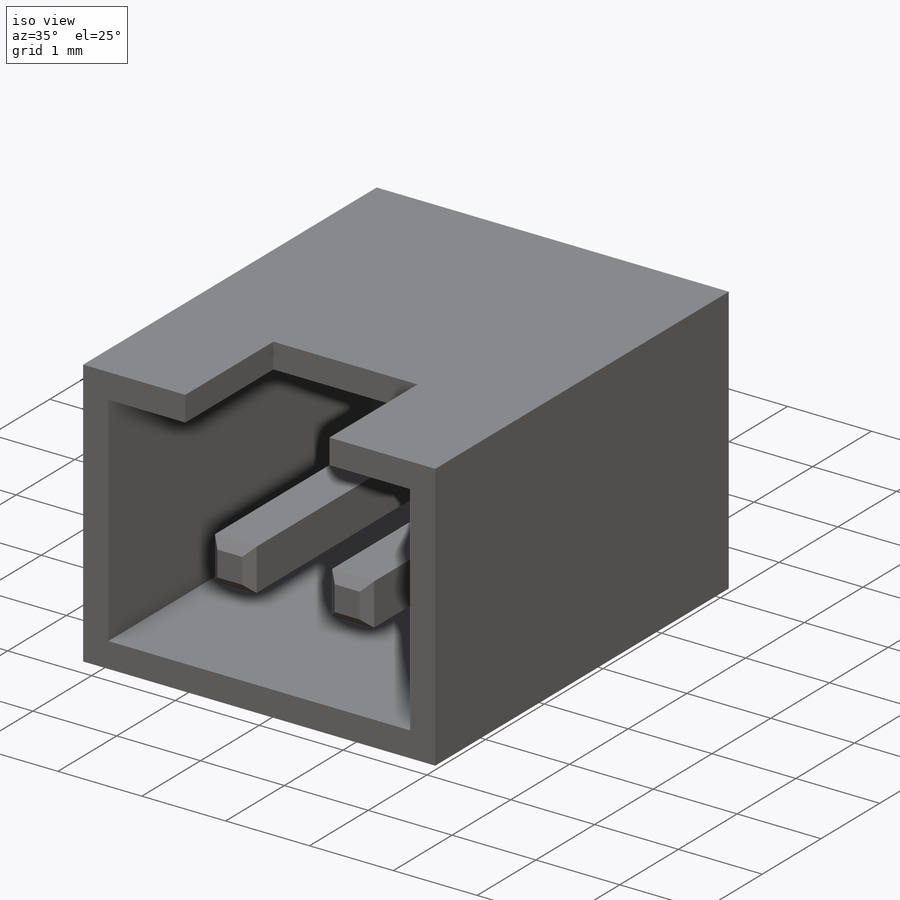
[diagram: iso view]
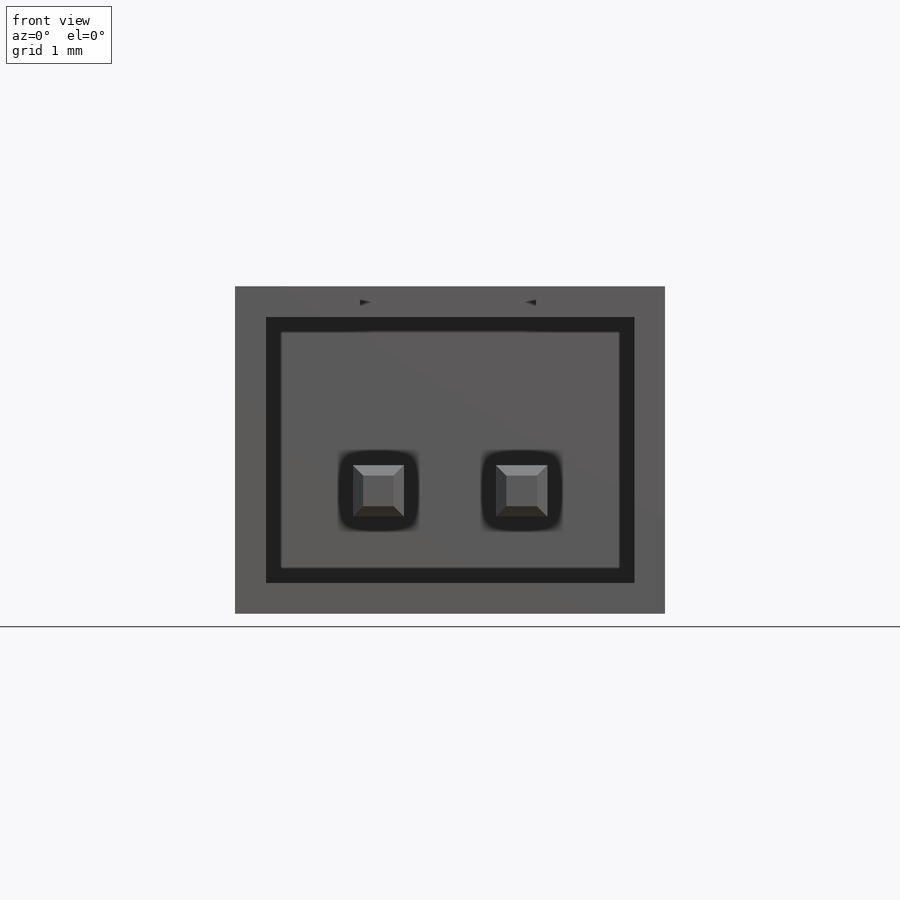
[diagram: front view]
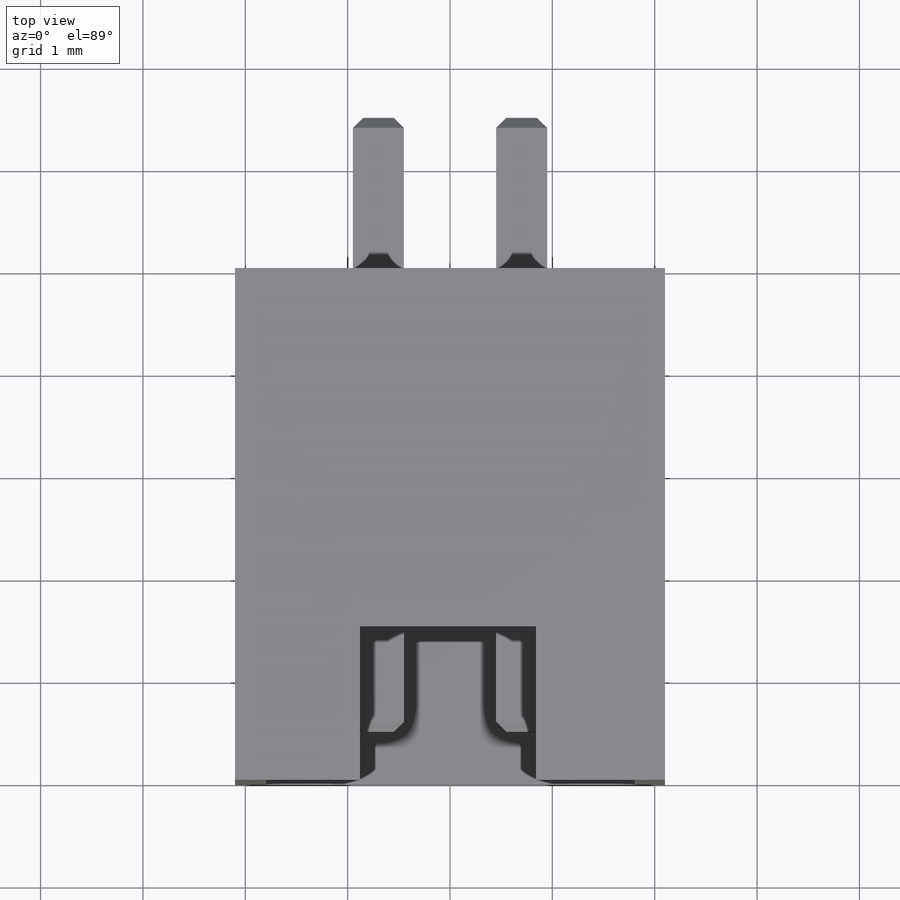
[diagram: top view]
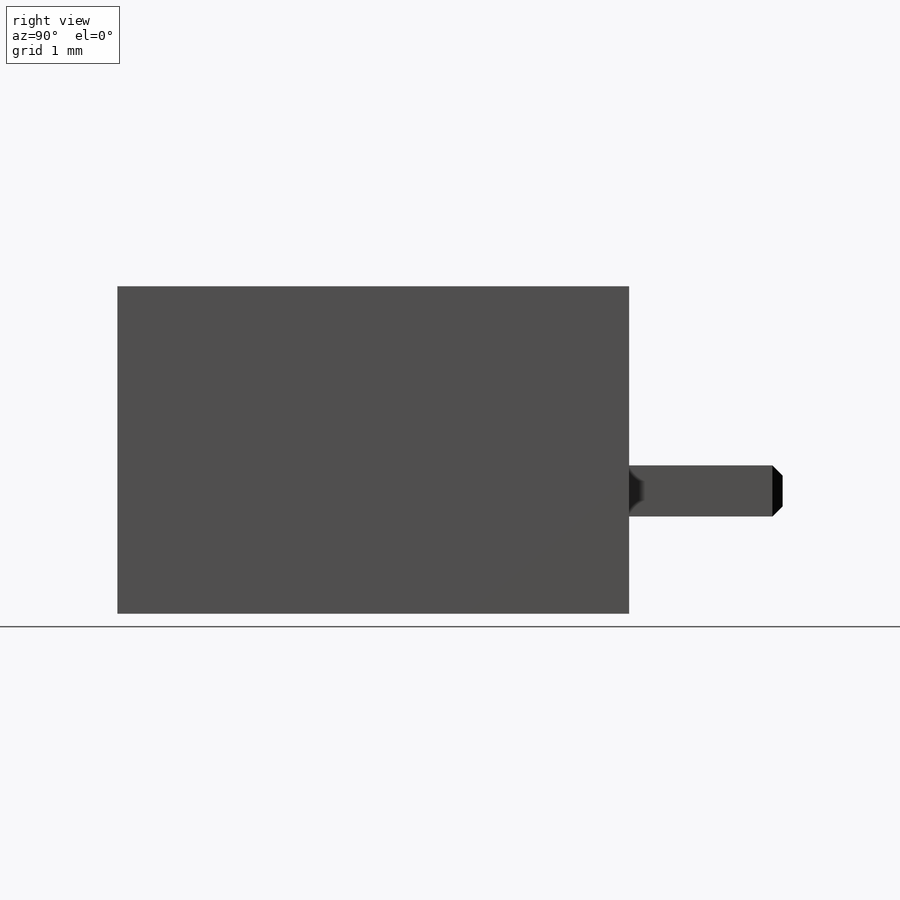
[diagram: right view]
SOLIDWORKS PART (.sldprt)
format: sldprt  version: not decoded by parser v0  size: 217,600 bytes
history: native  units: mm
features: plane x3, extrude x2, cut_extrude x2, chamfer x2, material x1, sketch x1 + 3 further entries (+9 scaffold rows collapsed)
feature tree (23):
  scaffold x9  (default folders/planes/origin — collapsed)
  material  "材质 <未指定>"
  plane  "前视基准面"
  plane  "上视基准面"
  plane  "右视基准面"
  sketch  "草图1"  dims[D1=4.2mm]
  extrude  "凸台-拉伸1"  Depth=5mm
  "草图2"
  cut_extrude  "切除-拉伸2"  Depth=4.5mm
  "草图10"
  cut_extrude  "切除-拉伸6"  Depth=1.5mm
  "草图12"
  extrude  "凸台-拉伸2"  Depth=4mm
  chamfer  "倒角2"  Distance=0.1mm Angle=45deg
  chamfer  "倒角3"  Distance=0.1mm Angle=45deg
decode coverage: 7 of 7 modeling features carry decoded parameters; 3 rows unclassified (native names shown)
note: suppression state not decoded; provenance and decode notes live in map.json
